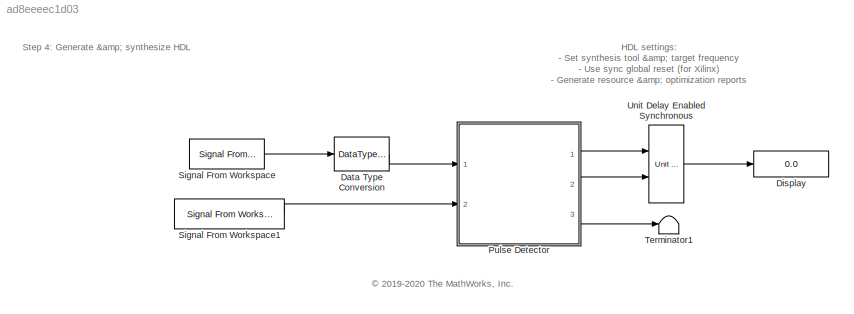
MODEL slx_ad8eeeec1d03
KIND model
CONFIG AbsTol = auto
CONFIG EnableMultiTasking = off
CONFIG FixedStep = auto
CONFIG MaxStep = auto
CONFIG MinStep = auto
CONFIG RelTol = 1e-3
CONFIG SampleTimeConstraint = Unconstrained
CONFIG Solver = FixedStepDiscrete
CONFIG SolverName = FixedStepDiscrete
CONFIG StartTime = 0.0
CONFIG StopTime = SimTime
BLOCK [DataTypeConversion] Data Type Conversion
  OutDataTypeStr = DT_input
  RndMeth = Nearest
BLOCK [Display] Display
  Decimation = 1
  Ports = [1]
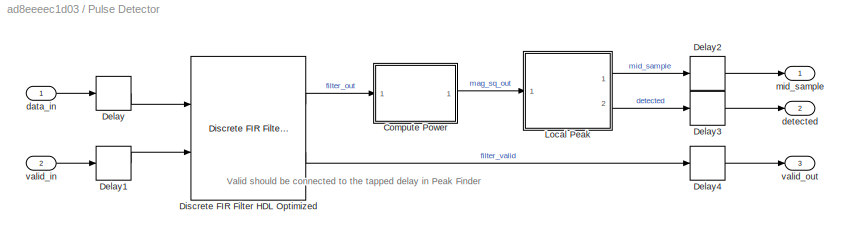
BLOCK [SubSystem] Pulse Detector
  Ports = [2, 3]
  RequestExecContextInheritance = off
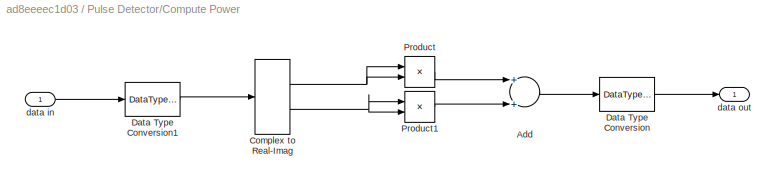
BLOCK [SubSystem] Pulse Detector/Compute Power
  Ports = [1, 1]
  RequestExecContextInheritance = off
BLOCK [Sum] Pulse Detector/Compute Power/Add
  InputSameDT = off
  OutDataTypeStr = Inherit: Inherit via internal rule
  Ports = [2, 1]
  SaturateOnIntegerOverflow = off
BLOCK [ComplexToRealImag] Pulse Detector/Compute Power/Complex to Real-Imag
  Ports = [1, 2]
BLOCK [DataTypeConversion] Pulse Detector/Compute Power/Data Type Conversion
  OutDataTypeStr = DT_power
  RndMeth = Floor
  SaturateOnIntegerOverflow = off
BLOCK [DataTypeConversion] Pulse Detector/Compute Power/Data Type Conversion1
  OutDataTypeStr = DT_filter
  RndMeth = Floor
  SaturateOnIntegerOverflow = off
BLOCK [Product] Pulse Detector/Compute Power/Product
  InputSameDT = off
  OutDataTypeStr = Inherit: Inherit via internal rule
  Ports = [2, 1]
  RndMeth = Floor
  SaturateOnIntegerOverflow = off
BLOCK [Product] Pulse Detector/Compute Power/Product1
  InputSameDT = off
  OutDataTypeStr = Inherit: Inherit via internal rule
  Ports = [2, 1]
  RndMeth = Floor
  SaturateOnIntegerOverflow = off
BLOCK [Inport] Pulse Detector/Compute Power/data in
  IconDisplay = Port number
BLOCK [Outport] Pulse Detector/Compute Power/data out
  IconDisplay = Port number
  VectorParamsAs1DForOutWhenUnconnected = off
BLOCK [Delay] Pulse Detector/Delay
  DelayLength = 1
  InputPortMap = u0
  Ports = [1, 1]
BLOCK [Delay] Pulse Detector/Delay1
  DelayLength = 1
  InputPortMap = u0
  Ports = [1, 1]
BLOCK [Delay] Pulse Detector/Delay2
  DelayLength = 1
  InputPortMap = u0
  Ports = [1, 1]
BLOCK [Delay] Pulse Detector/Delay3
  DelayLength = 1
  InputPortMap = u0
  Ports = [1, 1]
BLOCK [Delay] Pulse Detector/Delay4
  DelayLength = 1
  InputPortMap = u0
  Ports = [1, 1]
BLOCK [Reference] Pulse Detector/Discrete FIR Filter HDL Optimized  REF=dsphdlfiltering/Discrete FIR Filter
HDL Optimized
  Ports = [2, 2]
  SourceBlock = dsphdlfiltering/Discrete FIR Filter\nHDL Optimized
  SourceProductBaseCode = DS
  SourceProductName = DSP System Toolbox
  SourceType = Discrete FIR Filter HDL Optimized
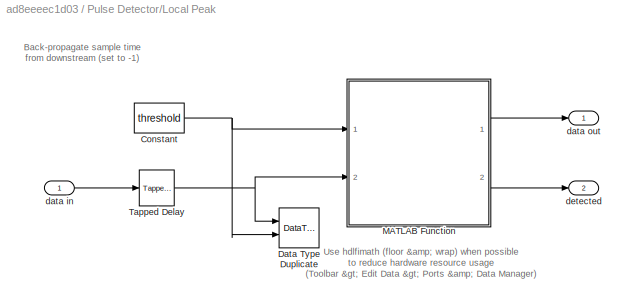
BLOCK [SubSystem] Pulse Detector/Local Peak
  Ports = [1, 2]
  RequestExecContextInheritance = off
BLOCK [Constant] Pulse Detector/Local Peak/Constant
  OutDataTypeStr = Inherit: Inherit via back propagation
  SampleTime = -1
  Value = threshold
BLOCK [DataTypeDuplicate] Pulse Detector/Local Peak/Data Type Duplicate
  Ports = [2]
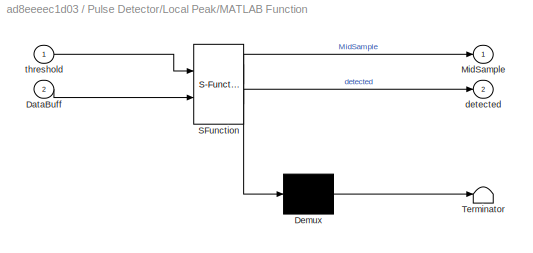
BLOCK [SubSystem] Pulse Detector/Local Peak/MATLAB Function
  ErrorFcn = Stateflow.Translate.translate
  PermitHierarchicalResolution = ExplicitOnly
  Ports = [2, 2]
  RequestExecContextInheritance = off
  SFBlockType = MATLAB Function
  TreatAsAtomicUnit = on
BLOCK [Demux] Pulse Detector/Local Peak/MATLAB Function/ Demux 
  Outputs = 1
  Ports = [1, 1]
BLOCK [S-Function] Pulse Detector/Local Peak/MATLAB Function/ SFunction 
  EnableBusSupport = on
  FunctionName = sf_sfun
  Parameters = WindowLen
  PortCounts = [2 3]
  Ports = [2, 3]
  SFcnIsStateOwnerBlock = off
  SFunctionDeploymentMode = off
  Tag = Stateflow S-Function 2
BLOCK [Terminator] Pulse Detector/Local Peak/MATLAB Function/ Terminator 
BLOCK [Inport] Pulse Detector/Local Peak/MATLAB Function/DataBuff
  IconDisplay = Port number
  Port = 2
BLOCK [Outport] Pulse Detector/Local Peak/MATLAB Function/MidSample
  IconDisplay = Port number
  VectorParamsAs1DForOutWhenUnconnected = off
BLOCK [Outport] Pulse Detector/Local Peak/MATLAB Function/detected
  IconDisplay = Port number
  Port = 2
  VectorParamsAs1DForOutWhenUnconnected = off
BLOCK [Inport] Pulse Detector/Local Peak/MATLAB Function/threshold
  IconDisplay = Port number
BLOCK [Reference] Pulse Detector/Local Peak/Tapped Delay  REF=simulink/Discrete/Tapped Delay
  Ports = [1, 1]
  SourceBlock = simulink/Discrete/Tapped Delay
  SourceProductBaseCode = SL
  SourceProductName = Simulink
  SourceType = Tapped Delay Line
BLOCK [Inport] Pulse Detector/Local Peak/data in
  IconDisplay = Port number
BLOCK [Outport] Pulse Detector/Local Peak/data out
  IconDisplay = Port number
  VectorParamsAs1DForOutWhenUnconnected = off
BLOCK [Outport] Pulse Detector/Local Peak/detected
  IconDisplay = Port number
  Port = 2
  VectorParamsAs1DForOutWhenUnconnected = off
BLOCK [Inport] Pulse Detector/data_in
  IconDisplay = Port number
BLOCK [Outport] Pulse Detector/detected
  IconDisplay = Port number
  Port = 2
BLOCK [Outport] Pulse Detector/mid_sample
  IconDisplay = Port number
BLOCK [Inport] Pulse Detector/valid_in
  IconDisplay = Port number
  Port = 2
BLOCK [Outport] Pulse Detector/valid_out
  IconDisplay = Port number
  Port = 3
BLOCK [Reference] Signal From Workspace  REF=dspsrcs4/Signal From
Workspace
  Ports = [0, 1]
  SourceBlock = dspsrcs4/Signal From\nWorkspace
  SourceProductBaseCode = DS
  SourceProductName = DSP System Toolbox
  SourceType = Signal From Workspace
BLOCK [Reference] Signal From Workspace1  REF=dspsrcs4/Signal From
Workspace
  Ports = [0, 1]
  SourceBlock = dspsrcs4/Signal From\nWorkspace
  SourceProductBaseCode = DS
  SourceProductName = DSP System Toolbox
  SourceType = Signal From Workspace
BLOCK [Terminator] Terminator1
BLOCK [Reference] Unit Delay Enabled Synchronous  REF=hdlsllib/Discrete/Unit Delay Enabled
Synchronous
  Ports = [2, 1]
  SourceBlock = hdlsllib/Discrete/Unit Delay Enabled\nSynchronous
  SourceProductBaseCode = HD
  SourceProductName = HDL Coder
  SourceType = Unit Delay Enabled Synchronous
ANNOTATION (root): HDL settings: - Set synthesis tool & target frequency - Use sync global reset (for Xilinx) - Generate resource & optimization reports
ANNOTATION (root): Step 4: Generate & synthesize HDL
ANNOTATION (root): <copyright redacted>
ANNOTATION Pulse Detector: Valid should be connected to the tapped delay in Peak Finder
ANNOTATION Pulse Detector/Local Peak: Back-propagate sample time from downstream (set to -1)
ANNOTATION Pulse Detector/Local Peak: Use hdlfimath (floor & wrap) when possible to reduce hardware resource usage (Toolbar > Edit Data > Ports & Data Manager)
LINE Data Type Conversion:1 -> Pulse Detector:1
LINE Pulse Detector/Compute Power/Add:1 -> Pulse Detector/Compute Power/Data Type Conversion:1
NET Pulse Detector/Compute Power/Complex to Real-Imag:1 -> Pulse Detector/Compute Power/Product:1, Pulse Detector/Compute Power/Product:2
NET Pulse Detector/Compute Power/Complex to Real-Imag:2 -> Pulse Detector/Compute Power/Product1:1, Pulse Detector/Compute Power/Product1:2
LINE Pulse Detector/Compute Power/Data Type Conversion1:1 -> Pulse Detector/Compute Power/Complex to Real-Imag:1
LINE Pulse Detector/Compute Power/Data Type Conversion:1 -> Pulse Detector/Compute Power/data out:1
LINE Pulse Detector/Compute Power/Product1:1 -> Pulse Detector/Compute Power/Add:2
LINE Pulse Detector/Compute Power/Product:1 -> Pulse Detector/Compute Power/Add:1
LINE Pulse Detector/Compute Power/data in:1 -> Pulse Detector/Compute Power/Data Type Conversion1:1
LINE Pulse Detector/Compute Power:1 -> Pulse Detector/Local Peak:1
LINE Pulse Detector/Delay1:1 -> Pulse Detector/Discrete FIR Filter HDL Optimized:2
LINE Pulse Detector/Delay2:1 -> Pulse Detector/mid_sample:1
LINE Pulse Detector/Delay3:1 -> Pulse Detector/detected:1
LINE Pulse Detector/Delay4:1 -> Pulse Detector/valid_out:1
LINE Pulse Detector/Delay:1 -> Pulse Detector/Discrete FIR Filter HDL Optimized:1
LINE Pulse Detector/Discrete FIR Filter HDL Optimized:1 -> Pulse Detector/Compute Power:1
LINE Pulse Detector/Discrete FIR Filter HDL Optimized:2 -> Pulse Detector/Delay4:1
NET Pulse Detector/Local Peak/Constant:1 -> Pulse Detector/Local Peak/Data Type Duplicate:2, Pulse Detector/Local Peak/MATLAB Function:1
LINE Pulse Detector/Local Peak/MATLAB Function:1 -> Pulse Detector/Local Peak/data out:1
LINE Pulse Detector/Local Peak/MATLAB Function:2 -> Pulse Detector/Local Peak/detected:1
NET Pulse Detector/Local Peak/Tapped Delay:1 -> Pulse Detector/Local Peak/Data Type Duplicate:1, Pulse Detector/Local Peak/MATLAB Function:2
LINE Pulse Detector/Local Peak/data in:1 -> Pulse Detector/Local Peak/Tapped Delay:1
LINE Pulse Detector/Local Peak:1 -> Pulse Detector/Delay2:1
LINE Pulse Detector/Local Peak:2 -> Pulse Detector/Delay3:1
LINE Pulse Detector/data_in:1 -> Pulse Detector/Delay:1
LINE Pulse Detector/valid_in:1 -> Pulse Detector/Delay1:1
LINE Pulse Detector:1 -> Unit Delay Enabled Synchronous:1
LINE Pulse Detector:2 -> Unit Delay Enabled Synchronous:2
LINE Pulse Detector:3 -> Terminator1:1
LINE Signal From Workspace1:1 -> Pulse Detector:2
LINE Signal From Workspace:1 -> Data Type Conversion:1
LINE Unit Delay Enabled Synchronous:1 -> Display:1
note: NET lines group one-source signal fan-out (src -> all destinations, sorted); 1:1 wires keep LINE
CHART Pulse Detector/Local Peak/MATLAB Function states=1 transitions=1
  STATE_LABEL 'eML_blk_kernel()'
  STATE_LABEL 'SCRIPT:\n% Hardware friendly implementation of peak finder\n%\n% Function inputs:\n% * WindowLen - non-tunable parameter defined under Simulink->Edit Data\n% * threhold  - input port (connected to constant)\n% * DataBuff  - input port (buffering done using Simulink block)\n%\n% Function outputs:\n% * "detected" is set when MidSample is local max\n\nfunction [MidSample,detected] = fcn(WindowLen, threshold, Da...<+423ch>'
